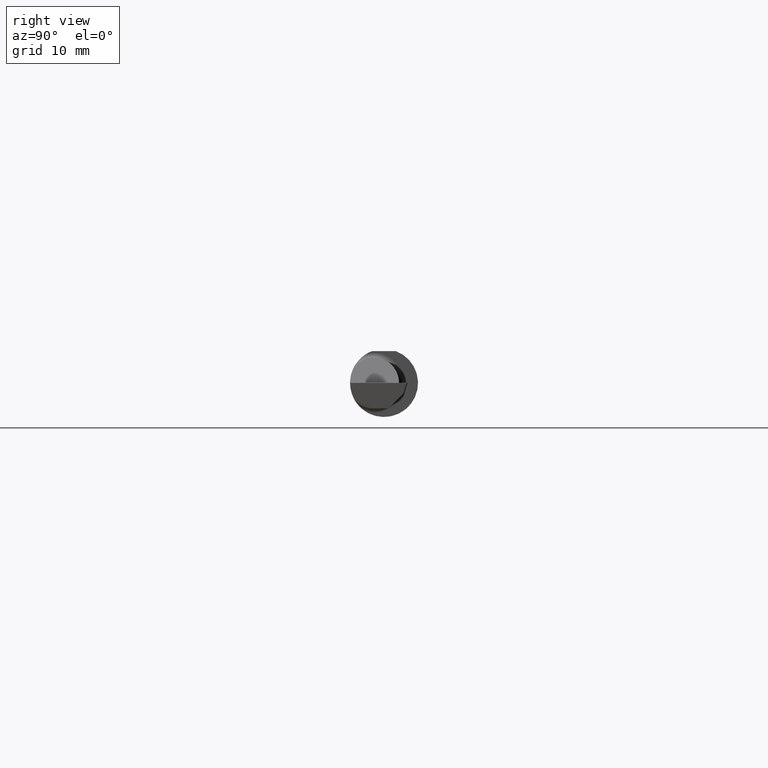
[diagram: clean part render]
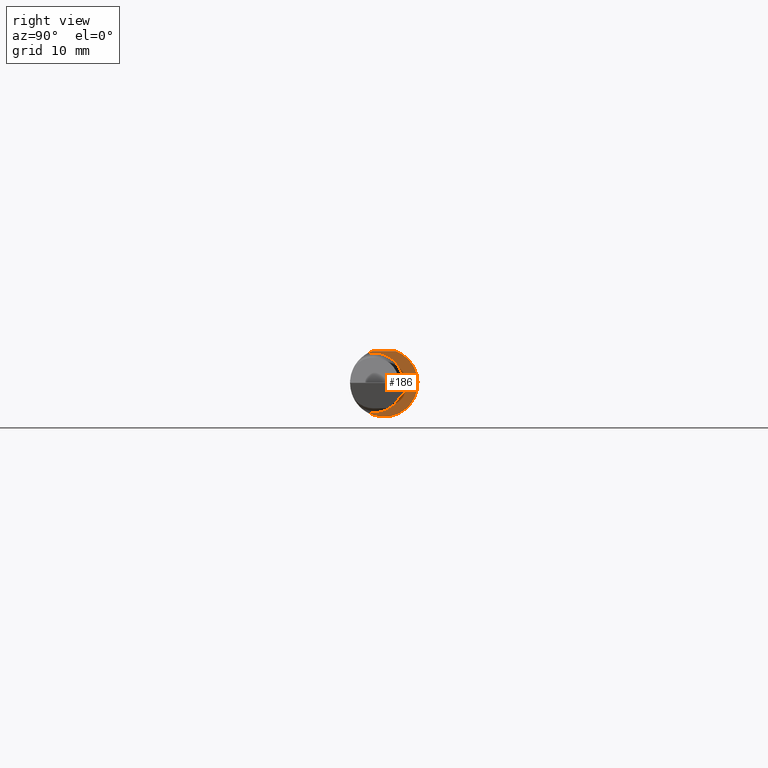
[diagram: same view with one face highlighted and labeled with its STEP entity id]
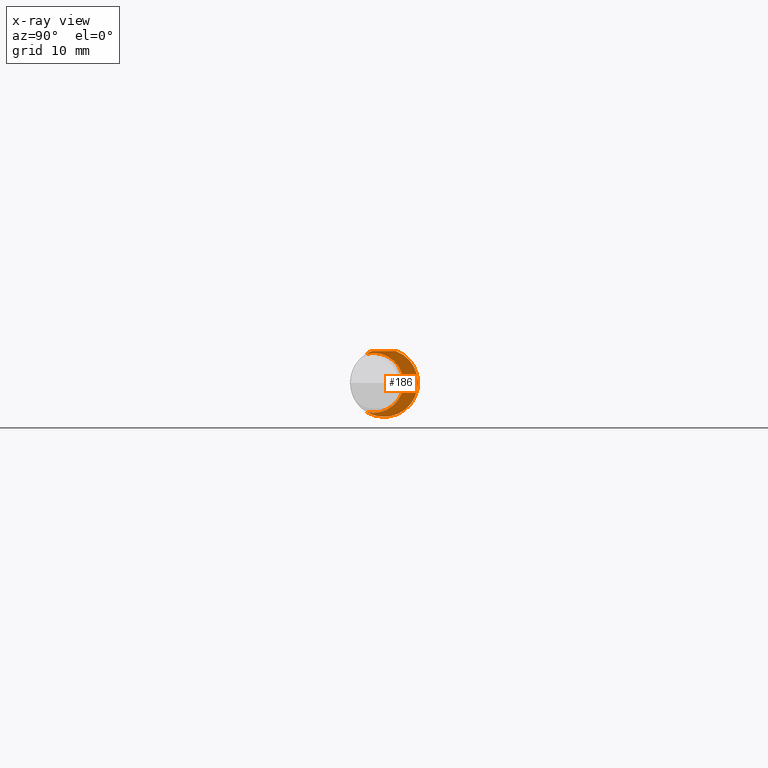
[diagram: x-ray of the same camera — body ghosted, the highlighted face saturated]
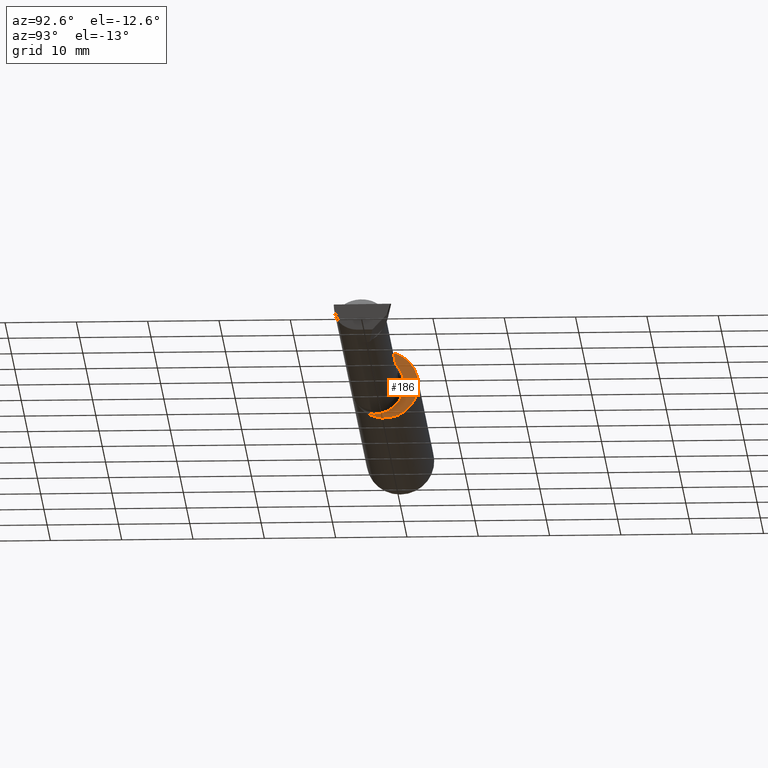
[diagram: same view with one face highlighted and labeled with its STEP entity id]
A machine part, right view. The second image highlights one B-rep face of the part: STEP entity #186.
The next image is the same camera in x-ray: the body ghosted, the highlighted face saturated — about 3% of this face is hidden behind the body in this view.
A second angle (auxiliary view) of the same face is appended — the face is thin or edge-on in the first view.
In plain terms, the highlighted planar face has unit normal (1, 0, 0).
Its self-contained STEP definition (entity closure, byte-faithful):
#1 = VERTEX_POINT ( 'NONE', #52 ) ;
#51 = CARTESIAN_POINT ( 'NONE',  ( 1.950000000000000178, -0.06597272163553666302, 0.1753499999999999781 ) ) ;
#52 = CARTESIAN_POINT ( 'NONE',  ( 1.950000000000000178, -0.09715400696864148755, 0.1601908905959922580 ) ) ;
#76 = DIRECTION ( 'NONE',  ( -4.268512490100411279E-18, 1.000000000000000000, 0.000000000000000000 ) ) ;
#101 = CARTESIAN_POINT ( 'NONE',  ( 1.950000000000000178, 0.000000000000000000, 0.000000000000000000 ) ) ;
#176 = CARTESIAN_POINT ( 'NONE',  ( 1.950000000000000178, 0.06597272163553663527, 0.1753499999999999781 ) ) ;
#186 = ADVANCED_FACE ( 'NONE', ( #517 ), #622, .T. ) ;
#209 = DIRECTION ( 'NONE',  ( 0.000000000000000000, 1.000000000000000000, 0.000000000000000000 ) ) ;
#214 = DIRECTION ( 'NONE',  ( 1.000000000000000000, 4.268512490100411279E-18, 0.000000000000000000 ) ) ;
#215 = ORIENTED_EDGE ( 'NONE', *, *, #335, .T. ) ;
#231 = AXIS2_PLACEMENT_3D ( 'NONE', #257, #598, #695 ) ;
#232 = CARTESIAN_POINT ( 'NONE',  ( 1.950000000000000178, -0.09715400696864148755, -0.1601908905959922580 ) ) ;
#248 = CARTESIAN_POINT ( 'NONE',  ( 1.950000000000000178, 0.2373500000000000332, 0.1753499999999999504 ) ) ;
#253 = CARTESIAN_POINT ( 'NONE',  ( 1.950000000000000178, -0.05740000000000000657, 0.000000000000000000 ) ) ;
#254 = AXIS2_PLACEMENT_3D ( 'NONE', #307, #529, #76 ) ;
#257 = CARTESIAN_POINT ( 'NONE',  ( 1.950000000000000178, 0.000000000000000000, 0.000000000000000000 ) ) ;
#274 = CIRCLE ( 'NONE', #656, 0.1650499999999998635 ) ;
#296 = EDGE_CURVE ( 'NONE', #654, #544, #445, .T. ) ;
#307 = CARTESIAN_POINT ( 'NONE',  ( 1.950000000000000178, 0.1076499999999998430, 0.000000000000000000 ) ) ;
#312 = DIRECTION ( 'NONE',  ( 4.268512490100411279E-18, -1.000000000000000000, 1.438723400918613551E-16 ) ) ;
#324 = ORIENTED_EDGE ( 'NONE', *, *, #296, .T. ) ;
#335 = EDGE_CURVE ( 'NONE', #551, #1, #650, .T. ) ;
#377 = DIRECTION ( 'NONE',  ( -1.000000000000000000, -4.268512490100411279E-18, -0.000000000000000000 ) ) ;
#427 = EDGE_CURVE ( 'NONE', #544, #551, #547, .T. ) ;
#431 = EDGE_CURVE ( 'NONE', #1, #654, #274, .T. ) ;
#445 = CIRCLE ( 'NONE', #231, 0.1873499999999999888 ) ;
#479 = DIRECTION ( 'NONE',  ( 0.000000000000000000, -1.000000000000000000, 0.000000000000000000 ) ) ;
#517 = FACE_OUTER_BOUND ( 'NONE', #687, .T. ) ;
#529 = DIRECTION ( 'NONE',  ( 1.000000000000000000, 4.268512490100411279E-18, 0.000000000000000000 ) ) ;
#544 = VERTEX_POINT ( 'NONE', #176 ) ;
#547 = LINE ( 'NONE', #248, #646 ) ;
#551 = VERTEX_POINT ( 'NONE', #51 ) ;
#585 = ORIENTED_EDGE ( 'NONE', *, *, #427, .T. ) ;
#598 = DIRECTION ( 'NONE',  ( 1.000000000000000000, 4.268512490100411279E-18, 0.000000000000000000 ) ) ;
#622 = PLANE ( 'NONE',  #254 ) ;
#639 = AXIS2_PLACEMENT_3D ( 'NONE', #101, #214, #209 ) ;
#646 = VECTOR ( 'NONE', #312, 39.37007874015748143 ) ;
#650 = CIRCLE ( 'NONE', #639, 0.1873499999999999888 ) ;
#654 = VERTEX_POINT ( 'NONE', #232 ) ;
#656 = AXIS2_PLACEMENT_3D ( 'NONE', #253, #377, #479 ) ;
#687 = EDGE_LOOP ( 'NONE', ( #324, #585, #215, #697 ) ) ;
#695 = DIRECTION ( 'NONE',  ( 0.000000000000000000, 1.000000000000000000, 0.000000000000000000 ) ) ;
#697 = ORIENTED_EDGE ( 'NONE', *, *, #431, .T. ) ;